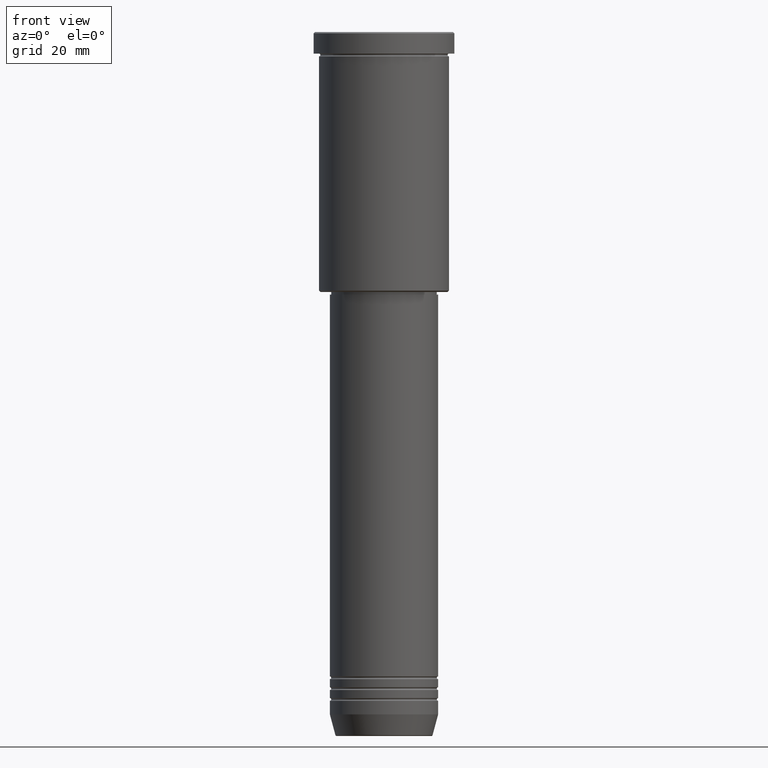
[diagram: clean part render]
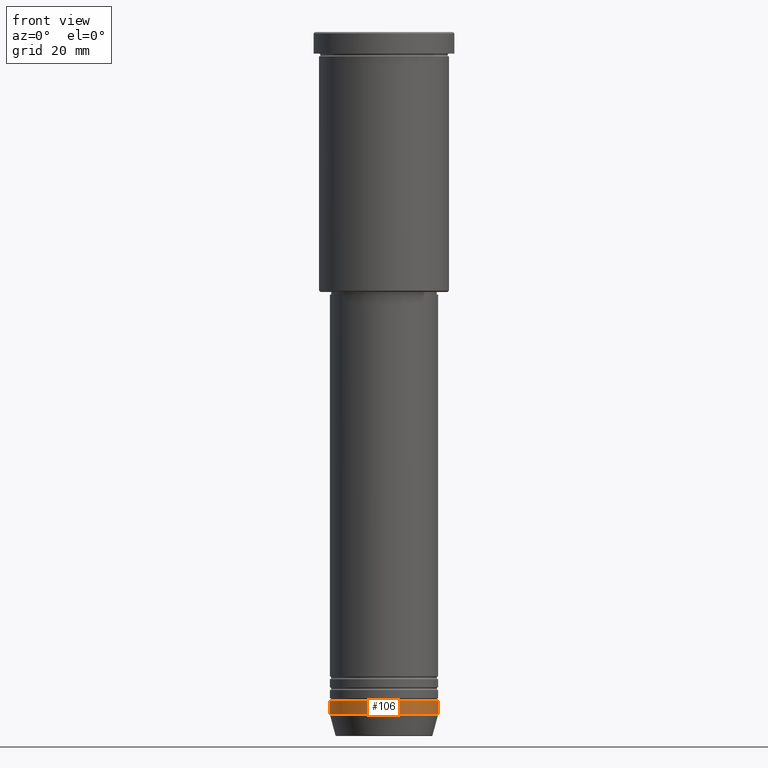
[diagram: same view with one face highlighted and labeled with its STEP entity id]
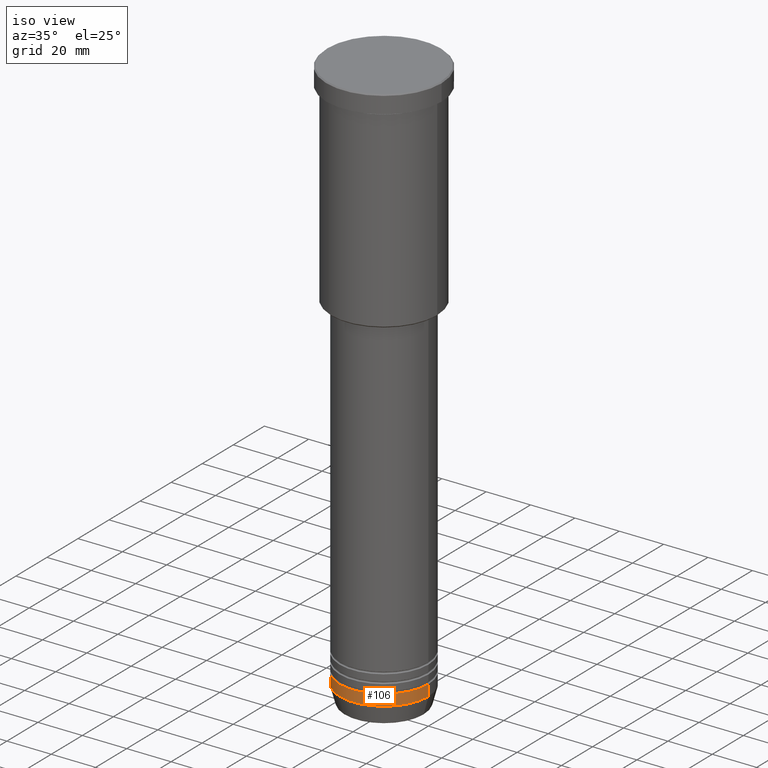
[diagram: same view with one face highlighted and labeled with its STEP entity id]
A machine part, front view. The second image highlights one B-rep face of the part: STEP entity #106.
A second angle (iso view) of the same face is appended — the face is thin or edge-on in the first view.
In plain terms, the highlighted cylindrical surface (partial cylindrical patch) has radius 20 mm, axis along (-0, -0, 1).
Its self-contained STEP definition (entity closure, byte-faithful):
#9 = CIRCLE ( 'NONE', #978, 20.00000000000000000 ) ;
#13 = DIRECTION ( 'NONE',  ( 1.000000000000000000, 0.000000000000000000, 0.000000000000000000 ) ) ;
#21 = CARTESIAN_POINT ( 'NONE',  ( 0.000000000000000000, 0.000000000000000000, 0.000000000000000000 ) ) ;
#48 = AXIS2_PLACEMENT_3D ( 'NONE', #833, #815, #13 ) ;
#58 = DIRECTION ( 'NONE',  ( -0.000000000000000000, -0.000000000000000000, 1.000000000000000000 ) ) ;
#106 = ADVANCED_FACE ( 'NONE', ( #949 ), #1127, .T. ) ;
#110 = ORIENTED_EDGE ( 'NONE', *, *, #1003, .T. ) ;
#160 = CARTESIAN_POINT ( 'NONE',  ( 20.00000000000000355, 0.000000000000000000, 0.000000000000000000 ) ) ;
#189 = VERTEX_POINT ( 'NONE', #759 ) ;
#194 = VECTOR ( 'NONE', #58, 1000.000000000000000 ) ;
#203 = DIRECTION ( 'NONE',  ( -0.000000000000000000, -0.000000000000000000, 1.000000000000000000 ) ) ;
#224 = DIRECTION ( 'NONE',  ( -0.000000000000000000, -0.000000000000000000, 1.000000000000000000 ) ) ;
#228 = EDGE_CURVE ( 'NONE', #240, #189, #229, .T. ) ;
#229 = LINE ( 'NONE', #690, #194 ) ;
#233 = VERTEX_POINT ( 'NONE', #963 ) ;
#240 = VERTEX_POINT ( 'NONE', #511 ) ;
#267 = ORIENTED_EDGE ( 'NONE', *, *, #228, .F. ) ;
#313 = CIRCLE ( 'NONE', #48, 20.00000000000000355 ) ;
#511 = CARTESIAN_POINT ( 'NONE',  ( -20.00000000000000355, 2.449293598294706907E-15, -252.0000000000000000 ) ) ;
#553 = CARTESIAN_POINT ( 'NONE',  ( 20.00000000000000355, 0.000000000000000000, -252.0000000000000000 ) ) ;
#641 = VERTEX_POINT ( 'NONE', #553 ) ;
#679 = CARTESIAN_POINT ( 'NONE',  ( 0.000000000000000000, 0.000000000000000000, -247.0000000000000000 ) ) ;
#690 = CARTESIAN_POINT ( 'NONE',  ( -20.00000000000000355, 2.449293598294706907E-15, 0.000000000000000000 ) ) ;
#700 = LINE ( 'NONE', #160, #871 ) ;
#752 = EDGE_CURVE ( 'NONE', #240, #641, #313, .T. ) ;
#759 = CARTESIAN_POINT ( 'NONE',  ( -20.00000000000000000, 2.449293598294706513E-15, -247.0000000000000000 ) ) ;
#768 = ORIENTED_EDGE ( 'NONE', *, *, #752, .T. ) ;
#780 = DIRECTION ( 'NONE',  ( -0.000000000000000000, -0.000000000000000000, 1.000000000000000000 ) ) ;
#785 = EDGE_LOOP ( 'NONE', ( #267, #768, #110, #880 ) ) ;
#808 = EDGE_CURVE ( 'NONE', #189, #233, #9, .T. ) ;
#815 = DIRECTION ( 'NONE',  ( -0.000000000000000000, -0.000000000000000000, 1.000000000000000000 ) ) ;
#833 = CARTESIAN_POINT ( 'NONE',  ( 0.000000000000000000, 0.000000000000000000, -252.0000000000000000 ) ) ;
#871 = VECTOR ( 'NONE', #780, 1000.000000000000000 ) ;
#880 = ORIENTED_EDGE ( 'NONE', *, *, #808, .F. ) ;
#935 = DIRECTION ( 'NONE',  ( 1.000000000000000000, 0.000000000000000000, 0.000000000000000000 ) ) ;
#949 = FACE_OUTER_BOUND ( 'NONE', #785, .T. ) ;
#952 = DIRECTION ( 'NONE',  ( 1.000000000000000000, 0.000000000000000000, 0.000000000000000000 ) ) ;
#963 = CARTESIAN_POINT ( 'NONE',  ( 20.00000000000000000, 0.000000000000000000, -247.0000000000000000 ) ) ;
#978 = AXIS2_PLACEMENT_3D ( 'NONE', #679, #224, #952 ) ;
#1003 = EDGE_CURVE ( 'NONE', #641, #233, #700, .T. ) ;
#1091 = AXIS2_PLACEMENT_3D ( 'NONE', #21, #203, #935 ) ;
#1127 = CYLINDRICAL_SURFACE ( 'NONE', #1091, 20.00000000000000355 ) ;